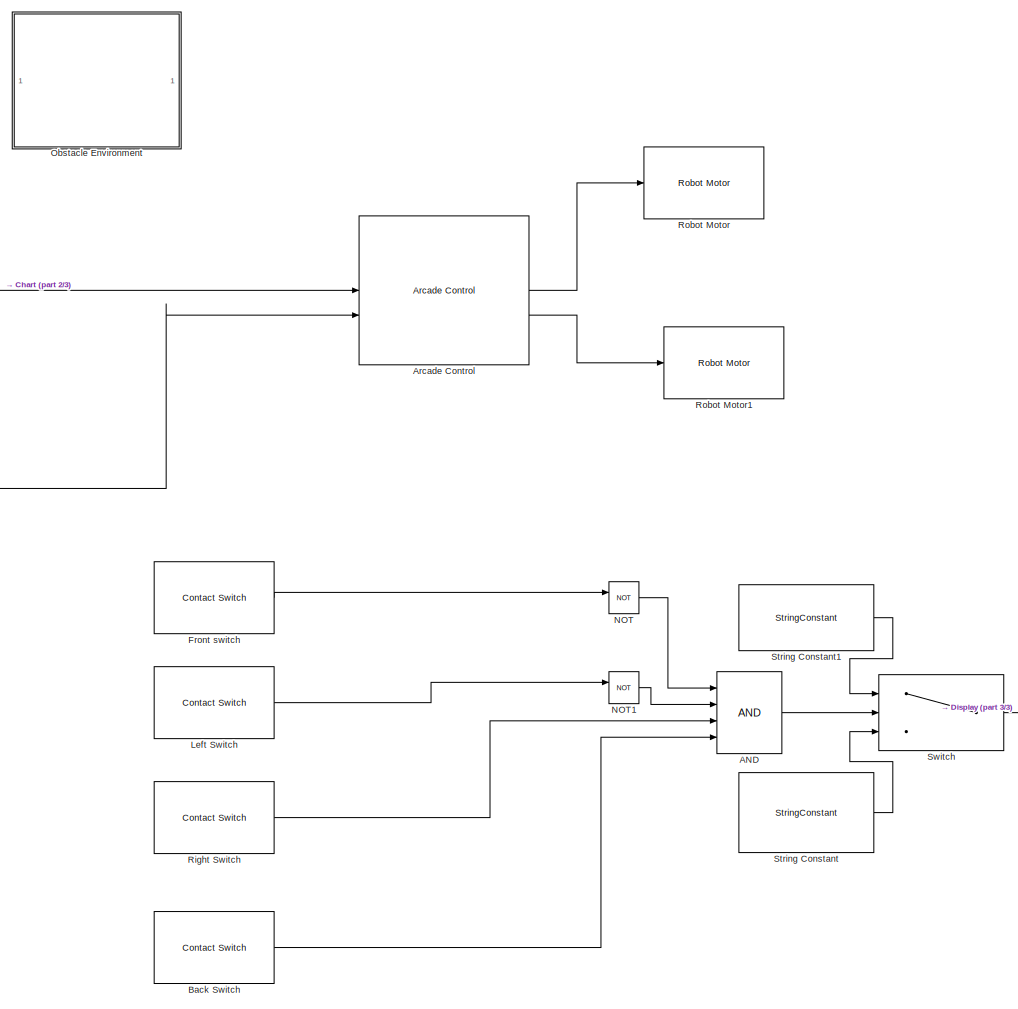
[diagram: root canvas - part 1/3, right side, full height]
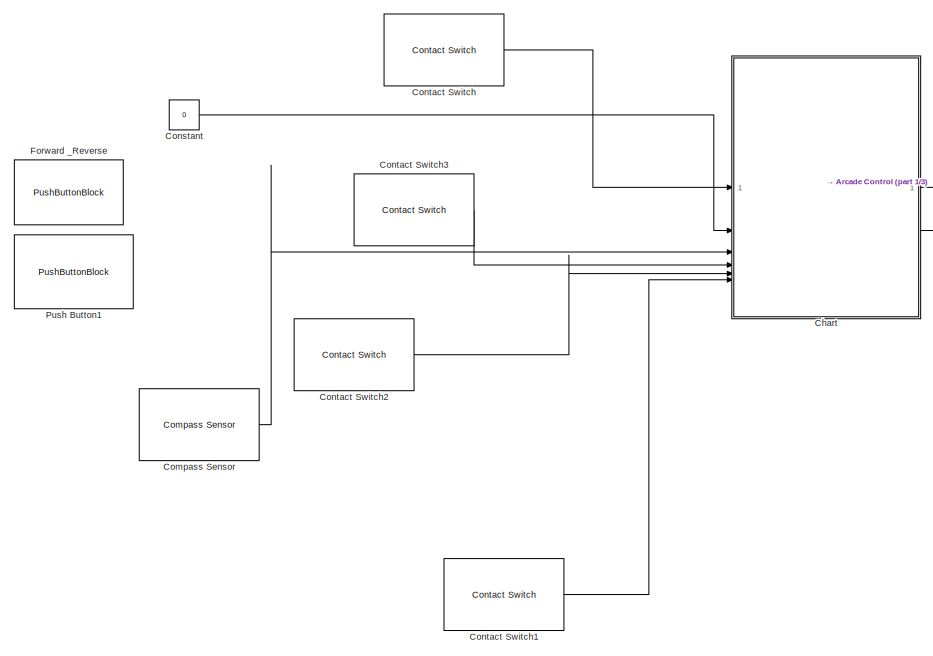
[diagram: root canvas - part 2/3, middle left region]
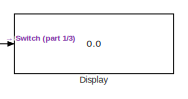
[diagram: root canvas - part 3/3, bottom right region]
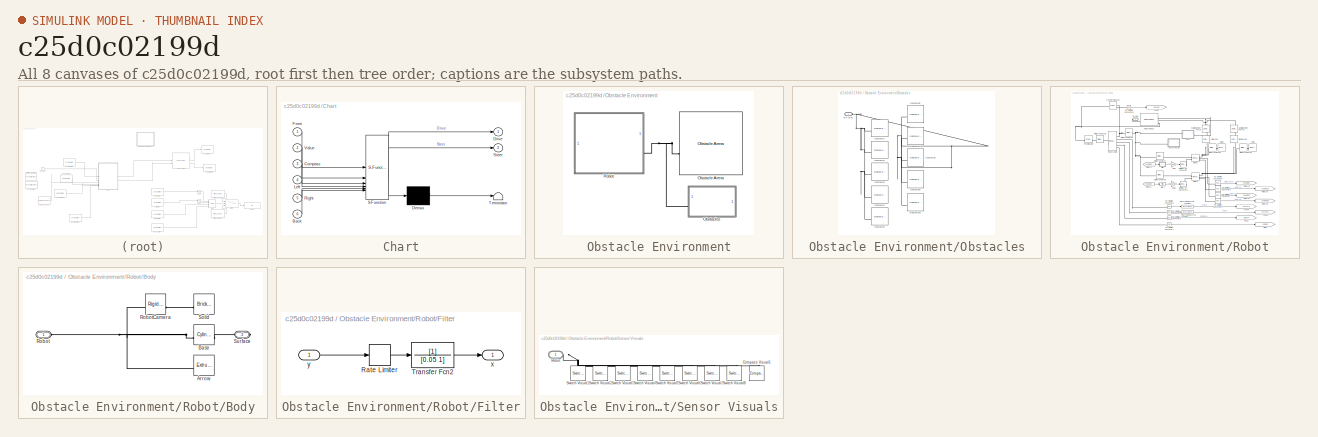
[diagram: thumbnail index - all 8 canvases of the model, root first then tree order]
MODEL slx_c25d0c02199d
KIND model
CONFIG AbsTol = auto
CONFIG EnableMultiTasking = off
CONFIG FixedStep = auto
CONFIG InitFcn = RPInit
CONFIG MaxStep = auto
CONFIG MinStep = auto
CONFIG RelTol = 1e-3
CONFIG SampleTimeConstraint = Unconstrained
CONFIG SolverName = ode23t
CONFIG StartTime = 0.0
CONFIG StopTime = 1000
WORKSPACE source: mxarray member
WORKSPACE mapForSim: object (value not decoded)
WORKSPACE occGrid: robotics.BinaryOccupancyGrid (value not decoded)
BLOCK [Logic] AND
  AllPortsSameDT = off
  IconShape = distinctive
  Inputs = 4
  OutDataTypeStr = boolean
BLOCK [Reference] Arcade Control  REF=RoboticsPlayground/Utilities and Hardware/Arcade Control
  SourceBlock = RoboticsPlayground/Utilities and Hardware/Arcade Control
  SourceProductName = Robotics Playground
BLOCK [Reference] Back Switch  REF=RoboticsPlayground/Basic Sensors and Actuators/Contact Switch
  SourceBlock = RoboticsPlayground/Basic Sensors and Actuators/Contact Switch
  SourceProductName = Robotics Playground
  SourceType = RP Contact Switch
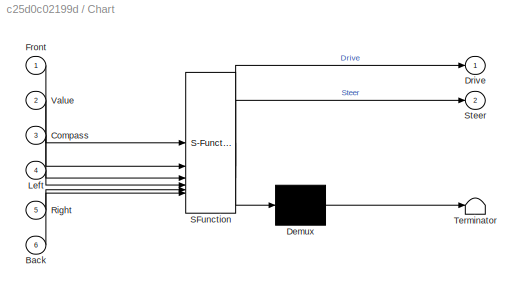
BLOCK [SubSystem] Chart
  ErrorFcn = Stateflow.Translate.translate
  PermitHierarchicalResolution = ExplicitOnly
  SFBlockType = Chart
  TreatAsAtomicUnit = on
BLOCK [Demux] Chart/ Demux 
  Outputs = 1
BLOCK [S-Function] Chart/ SFunction 
  EnableBusSupport = on
  FunctionName = sf_sfun
  PortCounts = [6 3]
  SFcnIsStateOwnerBlock = off
  SFunctionDeploymentMode = off
  Tag = Stateflow S-Function 3
BLOCK [Terminator] Chart/ Terminator 
BLOCK [Inport] Chart/Back
  Port = 6
BLOCK [Inport] Chart/Compass
  Port = 3
BLOCK [Outport] Chart/Drive
BLOCK [Inport] Chart/Front
BLOCK [Inport] Chart/Left
  Port = 4
BLOCK [Inport] Chart/Right
  Port = 5
BLOCK [Outport] Chart/Steer
  Port = 2
BLOCK [Inport] Chart/Value
  Port = 2
BLOCK [Reference] Compass Sensor  REF=RoboticsPlayground/Basic Sensors and Actuators/Compass Sensor
  SourceBlock = RoboticsPlayground/Basic Sensors and Actuators/Compass Sensor
  SourceProductName = Robotics Playground
  SourceType = RP Compass Sensor
BLOCK [Constant] Constant
  Value = 0
BLOCK [Reference] Contact Switch  REF=RoboticsPlayground/Basic Sensors and Actuators/Contact Switch
  SourceBlock = RoboticsPlayground/Basic Sensors and Actuators/Contact Switch
  SourceProductName = Robotics Playground
  SourceType = RP Contact Switch
BLOCK [Reference] Contact Switch1  REF=RoboticsPlayground/Basic Sensors and Actuators/Contact Switch
  SourceBlock = RoboticsPlayground/Basic Sensors and Actuators/Contact Switch
  SourceProductName = Robotics Playground
  SourceType = RP Contact Switch
BLOCK [Reference] Contact Switch2  REF=RoboticsPlayground/Basic Sensors and Actuators/Contact Switch
  SourceBlock = RoboticsPlayground/Basic Sensors and Actuators/Contact Switch
  SourceProductName = Robotics Playground
  SourceType = RP Contact Switch
BLOCK [Reference] Contact Switch3  REF=RoboticsPlayground/Basic Sensors and Actuators/Contact Switch
  SourceBlock = RoboticsPlayground/Basic Sensors and Actuators/Contact Switch
  SourceProductName = Robotics Playground
  SourceType = RP Contact Switch
BLOCK [Display] Display
  Decimation = 1
BLOCK [PushButtonBlock] Forward _Reverse
  ButtonText = Up_down
  LabelPosition = Top
  OffValue = 0.000000
BLOCK [Reference] Front switch  REF=RoboticsPlayground/Basic Sensors and Actuators/Contact Switch
  SourceBlock = RoboticsPlayground/Basic Sensors and Actuators/Contact Switch
  SourceProductName = Robotics Playground
  SourceType = RP Contact Switch
BLOCK [Reference] Left Switch  REF=RoboticsPlayground/Basic Sensors and Actuators/Contact Switch
  SourceBlock = RoboticsPlayground/Basic Sensors and Actuators/Contact Switch
  SourceProductName = Robotics Playground
  SourceType = RP Contact Switch
BLOCK [Logic] NOT
  AllPortsSameDT = off
  IconShape = distinctive
  Operator = NOT
  OutDataTypeStr = boolean
BLOCK [Logic] NOT1
  AllPortsSameDT = off
  IconShape = distinctive
  Operator = NOT
  OutDataTypeStr = boolean
BLOCK [SubSystem] Obstacle Environment
  CopyFcn = set_param(gcs,'InitFcn','RPInit');\nset_param(gcs,'Solver','ode23t');\nset_param(gcs, 'EnablePacing', 'on')\nset_param(gcs, 'PacingRate', 1)
BLOCK [Reference] Obstacle Environment/Obstacle Arena  REF=RP_Simulator_Components/Obstacle Arena
  SourceBlock = RP_Simulator_Components/Obstacle Arena
  SourceType = RP Grid Arena
BLOCK [SubSystem] Obstacle Environment/Obstacles
BLOCK [Reference] Obstacle Environment/Obstacles/Obstacle1  REF=RP_Simulator_Components/Obstacle Contact-Disc Robot
  SourceBlock = RP_Simulator_Components/Obstacle Contact-Disc Robot
  SourceType = RP Rectangle-Disc obstacle
BLOCK [Reference] Obstacle Environment/Obstacles/Obstacle10  REF=RP_Simulator_Components/Obstacle Contact-Disc Robot
  Commented = on
  SourceBlock = RP_Simulator_Components/Obstacle Contact-Disc Robot
  SourceType = RP Rectangle-Disc obstacle
BLOCK [Reference] Obstacle Environment/Obstacles/Obstacle2  REF=RP_Simulator_Components/Obstacle Contact-Disc Robot
  SourceBlock = RP_Simulator_Components/Obstacle Contact-Disc Robot
  SourceType = RP Rectangle-Disc obstacle
BLOCK [Reference] Obstacle Environment/Obstacles/Obstacle3  REF=RP_Simulator_Components/Obstacle Contact-Disc Robot
  SourceBlock = RP_Simulator_Components/Obstacle Contact-Disc Robot
  SourceType = RP Rectangle-Disc obstacle
BLOCK [Reference] Obstacle Environment/Obstacles/Obstacle4  REF=RP_Simulator_Components/Obstacle Contact-Disc Robot
  SourceBlock = RP_Simulator_Components/Obstacle Contact-Disc Robot
  SourceType = RP Rectangle-Disc obstacle
BLOCK [Reference] Obstacle Environment/Obstacles/Obstacle5  REF=RP_Simulator_Components/Obstacle Contact-Disc Robot
  SourceBlock = RP_Simulator_Components/Obstacle Contact-Disc Robot
  SourceType = RP Rectangle-Disc obstacle
BLOCK [Reference] Obstacle Environment/Obstacles/Obstacle6  REF=RP_Simulator_Components/Obstacle Contact-Disc Robot
  Commented = on
  SourceBlock = RP_Simulator_Components/Obstacle Contact-Disc Robot
  SourceType = RP Rectangle-Disc obstacle
BLOCK [Reference] Obstacle Environment/Obstacles/Obstacle7  REF=RP_Simulator_Components/Obstacle Contact-Disc Robot
  Commented = on
  SourceBlock = RP_Simulator_Components/Obstacle Contact-Disc Robot
  SourceType = RP Rectangle-Disc obstacle
BLOCK [Reference] Obstacle Environment/Obstacles/Obstacle8  REF=RP_Simulator_Components/Obstacle Contact-Disc Robot
  Commented = on
  SourceBlock = RP_Simulator_Components/Obstacle Contact-Disc Robot
  SourceType = RP Rectangle-Disc obstacle
BLOCK [Reference] Obstacle Environment/Obstacles/Obstacle9  REF=RP_Simulator_Components/Obstacle Contact-Disc Robot
  Commented = on
  SourceBlock = RP_Simulator_Components/Obstacle Contact-Disc Robot
  SourceType = RP Rectangle-Disc obstacle
BLOCK [PMIOPort] Obstacle Environment/Obstacles/RP-Bus
  Side = Left
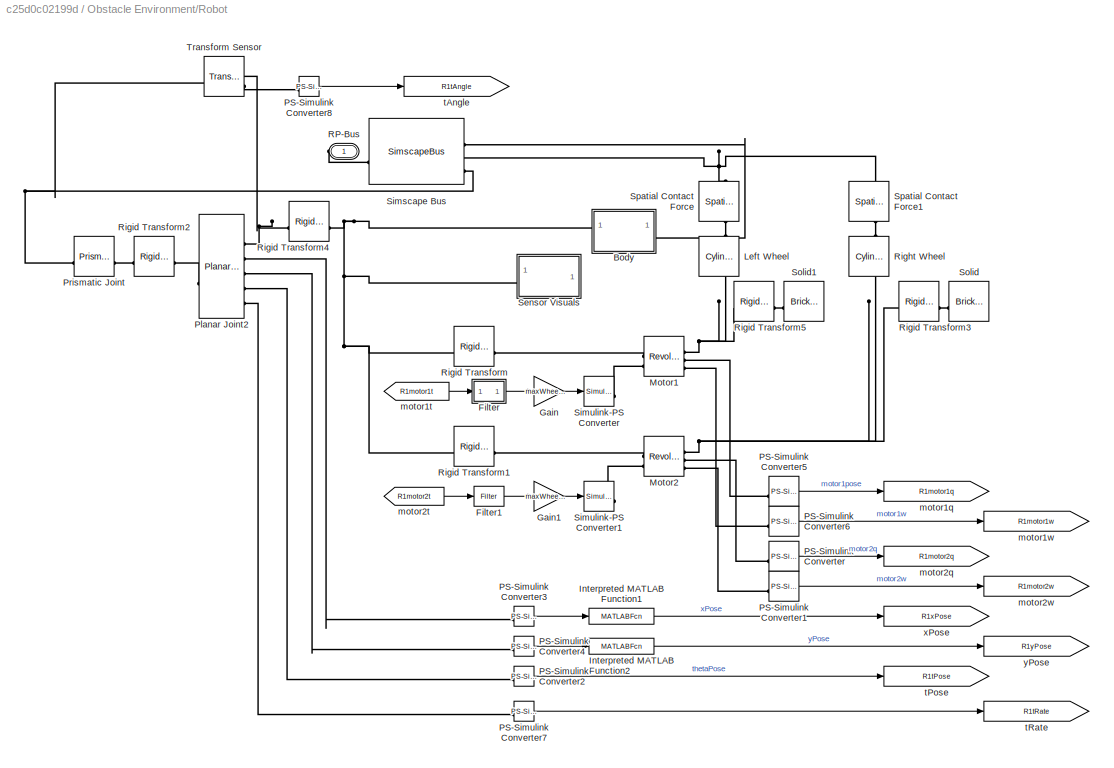
BLOCK [SubSystem] Obstacle Environment/Robot
  AncestorBlock = RP_Simulator_Components/Contact Tank Robot
BLOCK [SubSystem] Obstacle Environment/Robot/Body
BLOCK [Reference] Obstacle Environment/Robot/Body/Arrow  REF=sm_lib/Body Elements/Extruded Solid
  SourceBlock = sm_lib/Body Elements/Extruded Solid
  SourceType = Extruded Solid
BLOCK [Reference] Obstacle Environment/Robot/Body/Base  REF=sm_lib/Body Elements/Cylindrical Solid
  SourceBlock = sm_lib/Body Elements/Cylindrical Solid
  SourceType = Cylindrical Solid
BLOCK [PMIOPort] Obstacle Environment/Robot/Body/Robot
  Side = Left
BLOCK [Reference] Obstacle Environment/Robot/Body/RobotCamera  REF=sm_lib/Frames and
Transforms/Rigid
Transform
  SourceBlock = sm_lib/Frames and\nTransforms/Rigid\nTransform
  SourceType = Rigid\nTransform
BLOCK [Reference] Obstacle Environment/Robot/Body/Solid  REF=sm_lib/Body Elements/Brick Solid
  SourceBlock = sm_lib/Body Elements/Brick Solid
  SourceType = Brick Solid
BLOCK [PMIOPort] Obstacle Environment/Robot/Body/Surface
  NameLocation = top
  Port = 2
  Side = Right
BLOCK [SubSystem] Obstacle Environment/Robot/Filter
BLOCK [RateLimiter] Obstacle Environment/Robot/Filter/Rate Limiter
  FallingSlewLimit = -300
  RisingSlewLimit = 300
  SampleTimeMode = inherited
BLOCK [TransferFcn] Obstacle Environment/Robot/Filter/Transfer Fcn2
  Denominator = [0.05 1]
BLOCK [Outport] Obstacle Environment/Robot/Filter/x
  VectorParamsAs1DForOutWhenUnconnected = off
BLOCK [Inport] Obstacle Environment/Robot/Filter/y
BLOCK [Reference] Obstacle Environment/Robot/Filter1  REF=RP_Simulator_Components/Contact Tank Robot/Filter
  SourceBlock = RP_Simulator_Components/Contact Tank Robot/Filter
  SourceType = SubSystem
BLOCK [Gain] Obstacle Environment/Robot/Gain
  Gain = maxWheelTorque/127
BLOCK [Gain] Obstacle Environment/Robot/Gain1
  Gain = maxWheelTorque/127
BLOCK [MATLABFcn] Obstacle Environment/Robot/Interpreted MATLAB Function1
  MATLABFcn = u+floorSize(1)/2
BLOCK [MATLABFcn] Obstacle Environment/Robot/Interpreted MATLAB Function2
  MATLABFcn = u+floorSize(2)/2
BLOCK [Reference] Obstacle Environment/Robot/Left Wheel  REF=sm_lib/Body Elements/Cylindrical Solid
  NameLocation = right
  SourceBlock = sm_lib/Body Elements/Cylindrical Solid
  SourceType = Cylindrical Solid
BLOCK [Reference] Obstacle Environment/Robot/Motor1  REF=sm_lib/Joints/Revolute Joint
  SourceBlock = sm_lib/Joints/Revolute Joint
  SourceType = Revolute Joint
BLOCK [Reference] Obstacle Environment/Robot/Motor2  REF=sm_lib/Joints/Revolute Joint
  SourceBlock = sm_lib/Joints/Revolute Joint
  SourceType = Revolute Joint
BLOCK [Reference] Obstacle Environment/Robot/PS-Simulink Converter  REF=nesl_utility/PS-Simulink
Converter
  SourceBlock = nesl_utility/PS-Simulink\nConverter
  SourceType = PS-Simulink\nConverter
BLOCK [Reference] Obstacle Environment/Robot/PS-Simulink Converter1  REF=nesl_utility/PS-Simulink
Converter
  SourceBlock = nesl_utility/PS-Simulink\nConverter
  SourceType = PS-Simulink\nConverter
BLOCK [Reference] Obstacle Environment/Robot/PS-Simulink Converter2  REF=nesl_utility/PS-Simulink
Converter
  SourceBlock = nesl_utility/PS-Simulink\nConverter
  SourceType = PS-Simulink\nConverter
BLOCK [Reference] Obstacle Environment/Robot/PS-Simulink Converter3  REF=nesl_utility/PS-Simulink
Converter
  SourceBlock = nesl_utility/PS-Simulink\nConverter
  SourceType = PS-Simulink\nConverter
BLOCK [Reference] Obstacle Environment/Robot/PS-Simulink Converter4  REF=nesl_utility/PS-Simulink
Converter
  SourceBlock = nesl_utility/PS-Simulink\nConverter
  SourceType = PS-Simulink\nConverter
BLOCK [Reference] Obstacle Environment/Robot/PS-Simulink Converter5  REF=nesl_utility/PS-Simulink
Converter
  SourceBlock = nesl_utility/PS-Simulink\nConverter
  SourceType = PS-Simulink\nConverter
BLOCK [Reference] Obstacle Environment/Robot/PS-Simulink Converter6  REF=nesl_utility/PS-Simulink
Converter
  SourceBlock = nesl_utility/PS-Simulink\nConverter
  SourceType = PS-Simulink\nConverter
BLOCK [Reference] Obstacle Environment/Robot/PS-Simulink Converter7  REF=nesl_utility/PS-Simulink
Converter
  SourceBlock = nesl_utility/PS-Simulink\nConverter
  SourceType = PS-Simulink\nConverter
BLOCK [Reference] Obstacle Environment/Robot/PS-Simulink Converter8  REF=nesl_utility/PS-Simulink
Converter
  SourceBlock = nesl_utility/PS-Simulink\nConverter
  SourceType = PS-Simulink\nConverter
BLOCK [Reference] Obstacle Environment/Robot/Planar Joint2  REF=sm_lib/Joints/Planar Joint
  SourceBlock = sm_lib/Joints/Planar Joint
  SourceType = Planar Joint
BLOCK [Reference] Obstacle Environment/Robot/Prismatic Joint  REF=sm_lib/Joints/Prismatic
Joint
  SourceBlock = sm_lib/Joints/Prismatic\nJoint
  SourceType = Prismatic\nJoint
BLOCK [PMIOPort] Obstacle Environment/Robot/RP-Bus
  Side = Right
BLOCK [Reference] Obstacle Environment/Robot/Right Wheel  REF=sm_lib/Body Elements/Cylindrical Solid
  NameLocation = right
  SourceBlock = sm_lib/Body Elements/Cylindrical Solid
  SourceType = Cylindrical Solid
BLOCK [Reference] Obstacle Environment/Robot/Rigid Transform  REF=sm_lib/Frames and
Transforms/Rigid
Transform
  SourceBlock = sm_lib/Frames and\nTransforms/Rigid\nTransform
  SourceType = Rigid\nTransform
BLOCK [Reference] Obstacle Environment/Robot/Rigid Transform1  REF=sm_lib/Frames and
Transforms/Rigid
Transform
  SourceBlock = sm_lib/Frames and\nTransforms/Rigid\nTransform
  SourceType = Rigid\nTransform
BLOCK [Reference] Obstacle Environment/Robot/Rigid Transform2  REF=sm_lib/Frames and
Transforms/Rigid
Transform
  SourceBlock = sm_lib/Frames and\nTransforms/Rigid\nTransform
  SourceType = Rigid\nTransform
BLOCK [Reference] Obstacle Environment/Robot/Rigid Transform3  REF=sm_lib/Frames and
Transforms/Rigid
Transform
  SourceBlock = sm_lib/Frames and\nTransforms/Rigid\nTransform
  SourceType = Rigid\nTransform
BLOCK [Reference] Obstacle Environment/Robot/Rigid Transform4  REF=sm_lib/Frames and
Transforms/Rigid
Transform
  SourceBlock = sm_lib/Frames and\nTransforms/Rigid\nTransform
  SourceType = Rigid\nTransform
BLOCK [Reference] Obstacle Environment/Robot/Rigid Transform5  REF=sm_lib/Frames and
Transforms/Rigid
Transform
  SourceBlock = sm_lib/Frames and\nTransforms/Rigid\nTransform
  SourceType = Rigid\nTransform
BLOCK [SubSystem] Obstacle Environment/Robot/Sensor Visuals
BLOCK [Reference] Obstacle Environment/Robot/Sensor Visuals/Compass Visual1  REF=RP_Simulator_Components/Compass Visual
  NameLocation = right
  SourceBlock = RP_Simulator_Components/Compass Visual
  SourceType = RP Compass Visual
BLOCK [PMIOPort] Obstacle Environment/Robot/Sensor Visuals/Robot
  Side = Left
BLOCK [Reference] Obstacle Environment/Robot/Sensor Visuals/Switch Visual1  REF=RP_Simulator_Components/Switch Visual
  NameLocation = right
  SourceBlock = RP_Simulator_Components/Switch Visual
  SourceType = RP Switch Visual
BLOCK [Reference] Obstacle Environment/Robot/Sensor Visuals/Switch Visual2  REF=RP_Simulator_Components/Switch Visual
  NameLocation = right
  SourceBlock = RP_Simulator_Components/Switch Visual
  SourceType = RP Switch Visual
BLOCK [Reference] Obstacle Environment/Robot/Sensor Visuals/Switch Visual3  REF=RP_Simulator_Components/Switch Visual
  NameLocation = right
  SourceBlock = RP_Simulator_Components/Switch Visual
  SourceType = RP Switch Visual
BLOCK [Reference] Obstacle Environment/Robot/Sensor Visuals/Switch Visual4  REF=RP_Simulator_Components/Switch Visual
  NameLocation = right
  SourceBlock = RP_Simulator_Components/Switch Visual
  SourceType = RP Switch Visual
BLOCK [Reference] Obstacle Environment/Robot/Sensor Visuals/Switch Visual5  REF=RP_Simulator_Components/Switch Visual
  NameLocation = right
  SourceBlock = RP_Simulator_Components/Switch Visual
  SourceType = RP Switch Visual
BLOCK [Reference] Obstacle Environment/Robot/Sensor Visuals/Switch Visual6  REF=RP_Simulator_Components/Switch Visual
  NameLocation = right
  SourceBlock = RP_Simulator_Components/Switch Visual
  SourceType = RP Switch Visual
BLOCK [Reference] Obstacle Environment/Robot/Sensor Visuals/Switch Visual7  REF=RP_Simulator_Components/Switch Visual
  NameLocation = right
  SourceBlock = RP_Simulator_Components/Switch Visual
  SourceType = RP Switch Visual
BLOCK [Reference] Obstacle Environment/Robot/Sensor Visuals/Switch Visual8  REF=RP_Simulator_Components/Switch Visual
  NameLocation = right
  SourceBlock = RP_Simulator_Components/Switch Visual
  SourceType = RP Switch Visual
BLOCK [SimscapeBus] Obstacle Environment/Robot/Simscape Bus
  HierarchyStrings = RobotSurface;FloorSurface;Ref
  NameLocation = top
BLOCK [Reference] Obstacle Environment/Robot/Simulink-PS Converter  REF=nesl_utility/Simulink-PS
Converter
  SourceBlock = nesl_utility/Simulink-PS\nConverter
  SourceType = Simulink-PS\nConverter
BLOCK [Reference] Obstacle Environment/Robot/Simulink-PS Converter1  REF=nesl_utility/Simulink-PS
Converter
  SourceBlock = nesl_utility/Simulink-PS\nConverter
  SourceType = Simulink-PS\nConverter
BLOCK [Reference] Obstacle Environment/Robot/Solid  REF=sm_lib/Body Elements/Brick Solid
  NameLocation = top
  SourceBlock = sm_lib/Body Elements/Brick Solid
  SourceType = Brick Solid
BLOCK [Reference] Obstacle Environment/Robot/Solid1  REF=sm_lib/Body Elements/Brick Solid
  NameLocation = top
  SourceBlock = sm_lib/Body Elements/Brick Solid
  SourceType = Brick Solid
BLOCK [Reference] Obstacle Environment/Robot/Spatial Contact Force  REF=sm_lib/Forces and
Torques/Spatial
Contact Force
  NameLocation = left
  SourceBlock = sm_lib/Forces and\nTorques/Spatial\nContact Force
  SourceType = Spatial\nContact Force
BLOCK [Reference] Obstacle Environment/Robot/Spatial Contact Force1  REF=sm_lib/Forces and
Torques/Spatial
Contact Force
  NameLocation = left
  SourceBlock = sm_lib/Forces and\nTorques/Spatial\nContact Force
  SourceType = Spatial\nContact Force
BLOCK [Reference] Obstacle Environment/Robot/Transform Sensor  REF=sm_lib/Frames and
Transforms/Transform
Sensor
  SourceBlock = sm_lib/Frames and\nTransforms/Transform\nSensor
  SourceType = Transform\nSensor
BLOCK [Goto] Obstacle Environment/Robot/motor1q
  GotoTag = R1motor1q
  TagVisibility = global
BLOCK [From] Obstacle Environment/Robot/motor1t
  GotoTag = R1motor1t
  TagVisibility = global
BLOCK [Goto] Obstacle Environment/Robot/motor1w
  GotoTag = R1motor1w
  TagVisibility = global
BLOCK [Goto] Obstacle Environment/Robot/motor2q
  GotoTag = R1motor2q
  TagVisibility = global
BLOCK [From] Obstacle Environment/Robot/motor2t
  GotoTag = R1motor2t
  TagVisibility = global
BLOCK [Goto] Obstacle Environment/Robot/motor2w
  GotoTag = R1motor2w
  TagVisibility = global
BLOCK [Goto] Obstacle Environment/Robot/tAngle
  GotoTag = R1tAngle
  TagVisibility = global
BLOCK [Goto] Obstacle Environment/Robot/tPose
  GotoTag = R1tPose
  TagVisibility = global
BLOCK [Goto] Obstacle Environment/Robot/tRate
  GotoTag = R1tRate
  TagVisibility = global
BLOCK [Goto] Obstacle Environment/Robot/xPose
  GotoTag = R1xPose
  TagVisibility = global
BLOCK [Goto] Obstacle Environment/Robot/yPose
  GotoTag = R1yPose
  TagVisibility = global
BLOCK [PushButtonBlock] Push Button1
  ButtonText = Right_left
  LabelPosition = Top
  OffValue = 0.000000
  OnValue = 2
BLOCK [Reference] Right Switch  REF=RoboticsPlayground/Basic Sensors and Actuators/Contact Switch
  SourceBlock = RoboticsPlayground/Basic Sensors and Actuators/Contact Switch
  SourceProductName = Robotics Playground
  SourceType = RP Contact Switch
BLOCK [Reference] Robot Motor  REF=RoboticsPlayground/Basic Sensors and Actuators/Robot Motor
  SourceBlock = RoboticsPlayground/Basic Sensors and Actuators/Robot Motor
  SourceProductName = Robotics Playground
  SourceType = RP Robot Motor
BLOCK [Reference] Robot Motor1  REF=RoboticsPlayground/Basic Sensors and Actuators/Robot Motor
  SourceBlock = RoboticsPlayground/Basic Sensors and Actuators/Robot Motor
  SourceProductName = Robotics Playground
  SourceType = RP Robot Motor
BLOCK [StringConstant] String Constant
  String = "Robot is not in final state"
BLOCK [StringConstant] String Constant1
  String = "Robot is in Final state"
BLOCK [Switch] Switch
  Criteria = u2 ~= 0
  InputSameDT = off
  SaturateOnIntegerOverflow = off
LINE AND:1 -> Switch:2
LINE Arcade Control:1 -> Robot Motor:1
LINE Arcade Control:2 -> Robot Motor1:1
LINE Back Switch:1 -> AND:4
LINE Chart:1 -> Arcade Control:1
LINE Chart:2 -> Arcade Control:2
LINE Compass Sensor:1 -> Chart:3
LINE Constant:1 -> Chart:2
LINE Contact Switch1:1 -> Chart:6
LINE Contact Switch2:1 -> Chart:5
LINE Contact Switch3:1 -> Chart:4
LINE Contact Switch:1 -> Chart:1
LINE Front switch:1 -> NOT:1
LINE Left Switch:1 -> NOT1:1
LINE NOT1:1 -> AND:2
LINE NOT:1 -> AND:1
LINE Right Switch:1 -> AND:3
LINE String Constant1:1 -> Switch:1
LINE String Constant:1 -> Switch:3
LINE Switch:1 -> Display:1
CHART Chart states=10 transitions=14
  STATE_LABEL 'right\nentry:\nDrive=0;\nSteer=-60;\nexit:\nDrive=0;\nSteer=0;'
  STATE_LABEL 'Forward\nentry:\nDrive=120;\nSteer=0;\n'
  STATE_LABEL 'left_\nentry:\nDrive=0;\nSteer=60;\nexit:\nDrive=0;\nSteer=0;'
  STATE_LABEL 'right_forward\nentry:\nDrive=120;\nSteer=0;'
  STATE_LABEL 'Check\nentry:\nDrive=0;\nSteer=0;\n'
  STATE_LABEL 'left_forward_\nentry:\nDrive=120;\nSteer=0;'
  STATE_LABEL 'right_2\nentry:\nDrive=0;\nSteer=60;'
  STATE_LABEL 'left_1\nentry:\nDrive=0;\nSteer=-60;'
  STATE_LABEL 'Reverse\nentry: Drive = -120;\n Steer=0\n'
  STATE_LABEL 'Done_\nentry:\nDrive=0\nSteer=0'
CHART  states=0 transitions=0
